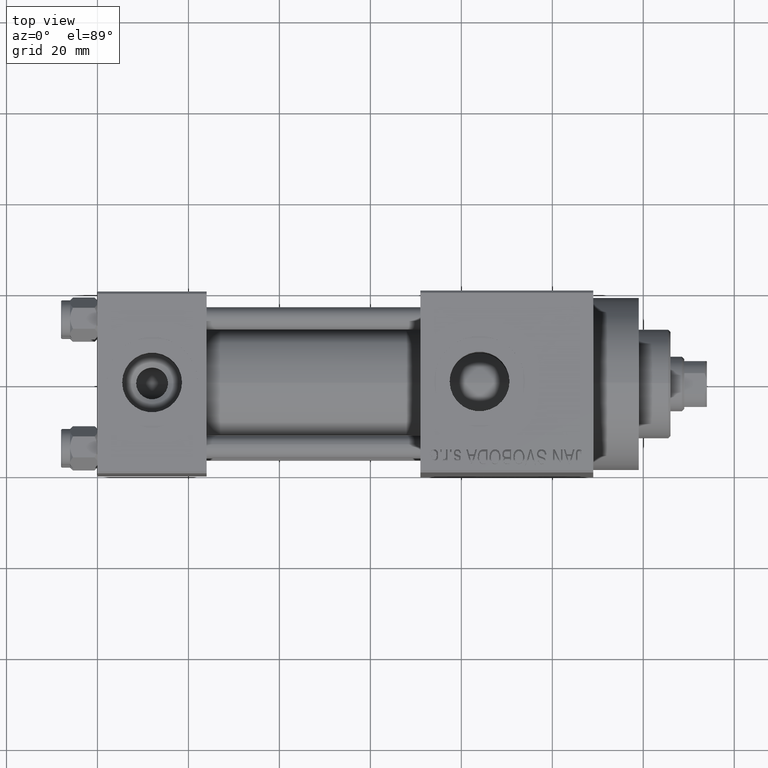
[diagram: clean part render]
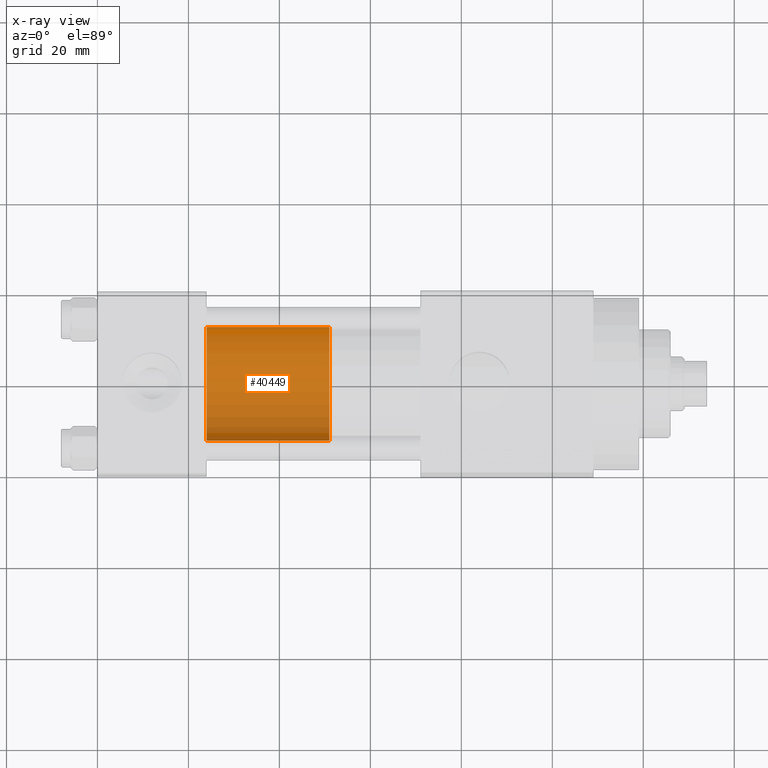
[diagram: x-ray — body ghosted, one internal face saturated and labeled with its STEP entity id]
A machine part, top view, then the same camera in x-ray: the body is ghosted and one INTERNAL B-rep face — a face not visible from any outside direction — is saturated and labeled: STEP entity #40449.
In plain terms, the highlighted cylindrical surface (partial cylindrical patch) has radius 12.5 mm, axis along (-1, 0, 0).
Its self-contained STEP definition (entity closure, byte-faithful):
#1490 = AXIS2_PLACEMENT_3D ( 'NONE', #45299, #23585, #38150 ) ;
#3169 = CARTESIAN_POINT ( 'NONE',  ( -12.50000000000000000, 0.000000000000000000, 27.00000000000000000 ) ) ;
#4083 = VECTOR ( 'NONE', #7683, 1000.000000000000000 ) ;
#5661 = DIRECTION ( 'NONE',  ( -0.000000000000000000, -0.000000000000000000, -1.000000000000000000 ) ) ;
#6478 = DIRECTION ( 'NONE',  ( 1.000000000000000000, 0.000000000000000000, 0.000000000000000000 ) ) ;
#7683 = DIRECTION ( 'NONE',  ( -0.000000000000000000, -0.000000000000000000, -1.000000000000000000 ) ) ;
#14738 = CYLINDRICAL_SURFACE ( 'NONE', #38473, 12.50000000000000000 ) ;
#15194 = CARTESIAN_POINT ( 'NONE',  ( 0.000000000000000000, 0.000000000000000000, 27.00000000000000000 ) ) ;
#15470 = CIRCLE ( 'NONE', #30710, 12.50000000000000000 ) ;
#16226 = ORIENTED_EDGE ( 'NONE', *, *, #36156, .T. ) ;
#16407 = CARTESIAN_POINT ( 'NONE',  ( 12.50000000000000000, 1.530808498934191521E-15, 0.000000000000000000 ) ) ;
#18746 = DIRECTION ( 'NONE',  ( -1.000000000000000000, 0.000000000000000000, 0.000000000000000000 ) ) ;
#19275 = VERTEX_POINT ( 'NONE', #16407 ) ;
#19718 = CIRCLE ( 'NONE', #1490, 12.50000000000000000 ) ;
#21841 = FACE_OUTER_BOUND ( 'NONE', #40736, .T. ) ;
#21995 = VECTOR ( 'NONE', #5661, 1000.000000000000000 ) ;
#23136 = ORIENTED_EDGE ( 'NONE', *, *, #23193, .F. ) ;
#23193 = EDGE_CURVE ( 'NONE', #45832, #39873, #34689, .T. ) ;
#23585 = DIRECTION ( 'NONE',  ( 0.000000000000000000, 0.000000000000000000, 1.000000000000000000 ) ) ;
#24325 = VERTEX_POINT ( 'NONE', #44413 ) ;
#25223 = CARTESIAN_POINT ( 'NONE',  ( 0.000000000000000000, 0.000000000000000000, 0.000000000000000000 ) ) ;
#28997 = DIRECTION ( 'NONE',  ( -0.000000000000000000, -0.000000000000000000, -1.000000000000000000 ) ) ;
#30710 = AXIS2_PLACEMENT_3D ( 'NONE', #25223, #39552, #6478 ) ;
#32046 = CARTESIAN_POINT ( 'NONE',  ( -12.50000000000000000, 0.000000000000000000, 27.00000000000000000 ) ) ;
#32184 = EDGE_CURVE ( 'NONE', #24325, #19275, #43646, .T. ) ;
#33549 = ORIENTED_EDGE ( 'NONE', *, *, #46031, .F. ) ;
#34594 = CARTESIAN_POINT ( 'NONE',  ( -12.50000000000000000, 0.000000000000000000, 0.000000000000000000 ) ) ;
#34689 = LINE ( 'NONE', #32046, #21995 ) ;
#36156 = EDGE_CURVE ( 'NONE', #19275, #39873, #15470, .T. ) ;
#38150 = DIRECTION ( 'NONE',  ( 1.000000000000000000, 0.000000000000000000, 0.000000000000000000 ) ) ;
#38473 = AXIS2_PLACEMENT_3D ( 'NONE', #15194, #28997, #18746 ) ;
#39552 = DIRECTION ( 'NONE',  ( 0.000000000000000000, 0.000000000000000000, 1.000000000000000000 ) ) ;
#39873 = VERTEX_POINT ( 'NONE', #34594 ) ;
#40449 = ADVANCED_FACE ( 'NONE', ( #21841 ), #14738, .T. ) ;
#40736 = EDGE_LOOP ( 'NONE', ( #33549, #40970, #16226, #23136 ) ) ;
#40970 = ORIENTED_EDGE ( 'NONE', *, *, #32184, .T. ) ;
#43646 = LINE ( 'NONE', #44584, #4083 ) ;
#44413 = CARTESIAN_POINT ( 'NONE',  ( 12.50000000000000000, 1.530808498934191521E-15, 27.00000000000000000 ) ) ;
#44584 = CARTESIAN_POINT ( 'NONE',  ( 12.50000000000000000, 1.530808498934191521E-15, 27.00000000000000000 ) ) ;
#45299 = CARTESIAN_POINT ( 'NONE',  ( 0.000000000000000000, 0.000000000000000000, 27.00000000000000000 ) ) ;
#45832 = VERTEX_POINT ( 'NONE', #3169 ) ;
#46031 = EDGE_CURVE ( 'NONE', #24325, #45832, #19718, .T. ) ;